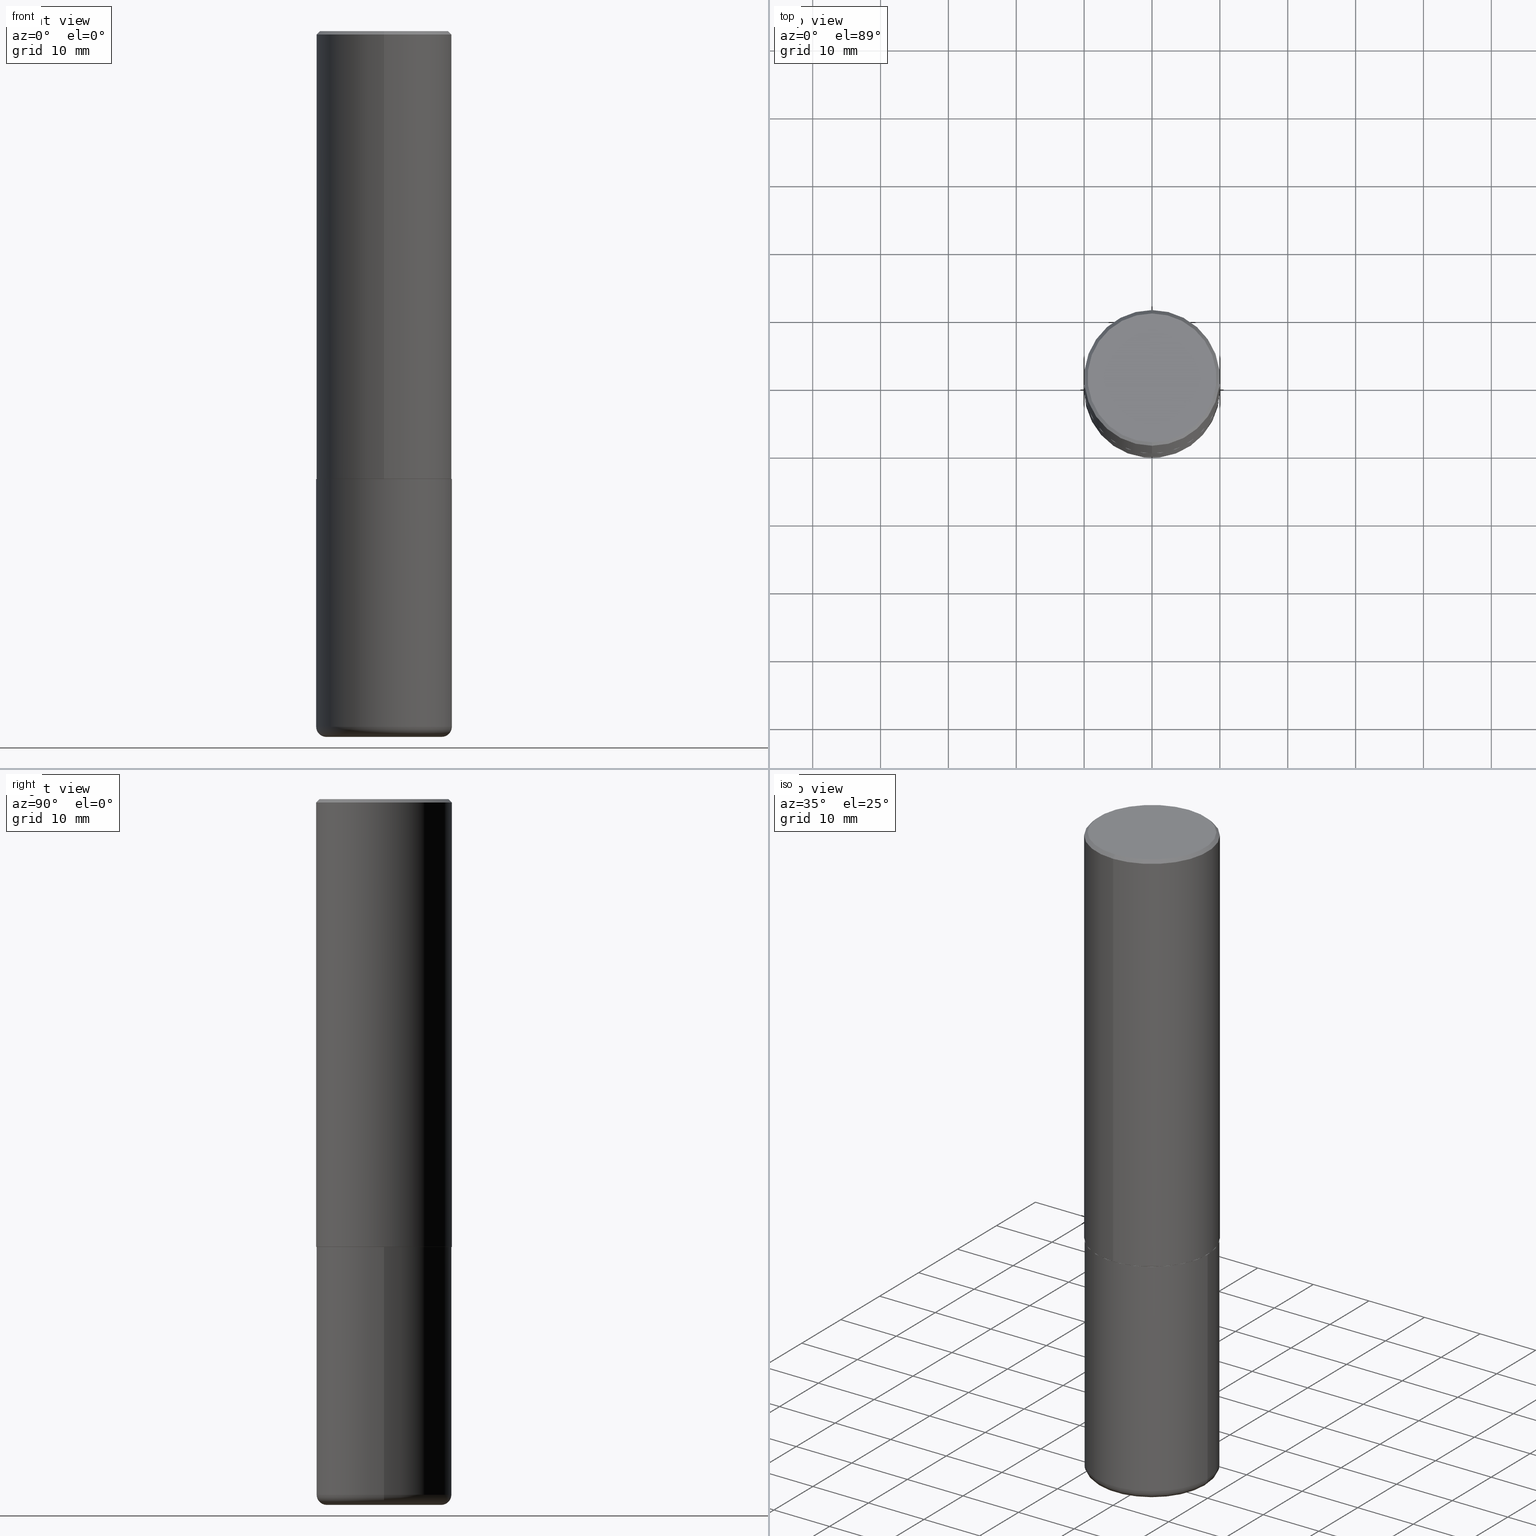
[diagram: canonical four-view strip — front | top / right | iso, engineering-drawing reading convention]
A machine part, canonical four-view strip (front | top / right | iso — engineering-drawing reading convention). The complete STEP part file that produces these views, byte-faithful:
ISO-10303-21;
HEADER;
FILE_DESCRIPTION (( 'STEP AP203' ),
    '1' );
FILE_NAME ('45125.STEP',
    '2024-03-04T14:59:28',
    ( '' ),
    ( '' ),
    'SwSTEP 2.0',
    'SolidWorks 2023',
    '' );
FILE_SCHEMA (( 'CONFIG_CONTROL_DESIGN' ));
ENDSEC;

DATA;
#1 = LINE ( 'NONE', #89, #179 ) ;
#2 = SHAPE_DEFINITION_REPRESENTATION ( #402, #136 ) ;
#3 = VERTEX_POINT ( 'NONE', #144 ) ;
#4 = APPROVAL_ROLE ( '' ) ;
#5 = EDGE_LOOP ( 'NONE', ( #169, #44 ) ) ;
#6 = EDGE_CURVE ( 'NONE', #68, #189, #208, .T. ) ;
#7 = EDGE_LOOP ( 'NONE', ( #38, #43, #305, #175 ) ) ;
#8 = CIRCLE ( 'NONE', #206, 0.05909999999999992343 ) ;
#9 = CC_DESIGN_PERSON_AND_ORGANIZATION_ASSIGNMENT ( #197, #324, ( #209 ) ) ;
#10 = CC_DESIGN_SECURITY_CLASSIFICATION ( #69, ( #209 ) ) ;
#11 = ORIENTED_EDGE ( 'NONE', *, *, #137, .T. ) ;
#12 = ORIENTED_EDGE ( 'NONE', *, *, #380, .F. ) ;
#13 = DIRECTION ( 'NONE',  ( 2.438088387897960049E-29, -3.491481338843145188E-15, -1.000000000000000000 ) ) ;
#14 = CARTESIAN_POINT ( 'NONE',  ( 2.790301323329976493E-15, 0.3926999999999909452, -2.598400000000001597 ) ) ;
#15 = ORIENTED_EDGE ( 'NONE', *, *, #6, .T. ) ;
#16 = CIRCLE ( 'NONE', #196, 0.3937000000000002720 ) ;
#17 = TOROIDAL_SURFACE ( 'NONE', #377, 0.3346000000000000085, 0.05909999999999992343 ) ;
#18 = ADVANCED_FACE ( 'NONE', ( #407 ), #150, .T. ) ;
#19 = DIRECTION ( 'NONE',  ( -6.982962677686265133E-15, -1.000000000000000000, 4.173946514383900962E-15 ) ) ;
#20 = VERTEX_POINT ( 'NONE', #337 ) ;
#21 = CYLINDRICAL_SURFACE ( 'NONE', #243, 0.3937000000000001054 ) ;
#22 = CC_DESIGN_PERSON_AND_ORGANIZATION_ASSIGNMENT ( #66, #330, ( #139 ) ) ;
#23 = EDGE_CURVE ( 'NONE', #129, #362, #371, .T. ) ;
#24 = DIRECTION ( 'NONE',  ( -6.982962677686265133E-15, -1.000000000000000000, 4.173946514383900962E-15 ) ) ;
#25 = CARTESIAN_POINT ( 'NONE',  ( 0.000000000000000000, 0.000000000000000000, 0.000000000000000000 ) ) ;
#26 = CARTESIAN_POINT ( 'NONE',  ( -0.3936999999999999389, -1.129211704408011394E-14, -4.035400000000000098 ) ) ;
#27 = APPROVAL_PERSON_ORGANIZATION ( #388, #360, #130 ) ;
#28 = CARTESIAN_POINT ( 'NONE',  ( 2.797406750687514786E-15, 0.3937000000000001054, -1.375009401077903823E-15 ) ) ;
#29 = ADVANCED_FACE ( 'NONE', ( #80 ), #39, .T. ) ;
#30 = PERSON_AND_ORGANIZATION_ROLE ( 'design_supplier' ) ;
#31 = CARTESIAN_POINT ( 'NONE',  ( -0.3346000000000000085, -1.171204780091433423E-14, -4.035400000000000098 ) ) ;
#32 = VERTEX_POINT ( 'NONE', #341 ) ;
#33 = DATE_TIME_ROLE ( 'creation_date' ) ;
#34 = LINE ( 'NONE', #381, #255 ) ;
#35 = AXIS2_PLACEMENT_3D ( 'NONE', #92, #224, #61 ) ;
#36 = LENGTH_MEASURE_WITH_UNIT ( LENGTH_MEASURE( 0.02539999999999999897 ), #103 );
#37 = EDGE_CURVE ( 'NONE', #362, #129, #205, .T. ) ;
#38 = ORIENTED_EDGE ( 'NONE', *, *, #176, .T. ) ;
#39 = CONICAL_SURFACE ( 'NONE', #363, 0.3936999999999999389, 0.7853981633974456145 ) ;
#40 = CIRCLE ( 'NONE', #225, 0.05909999999999992343 ) ;
#41 = AXIS2_PLACEMENT_3D ( 'NONE', #215, #335, #187 ) ;
#42 = VERTEX_POINT ( 'NONE', #274 ) ;
#43 = ORIENTED_EDGE ( 'NONE', *, *, #99, .T. ) ;
#44 = ORIENTED_EDGE ( 'NONE', *, *, #165, .F. ) ;
#45 = DIRECTION ( 'NONE',  ( -2.444735926825112369E-29, 3.492530863799602802E-15, 1.000000000000000000 ) ) ;
#46 = EDGE_LOOP ( 'NONE', ( #207, #416, #397, #361 ) ) ;
#47 = FACE_OUTER_BOUND ( 'NONE', #180, .T. ) ;
#48 = EDGE_LOOP ( 'NONE', ( #250, #339, #11, #141 ) ) ;
#49 = CARTESIAN_POINT ( 'NONE',  ( 9.868444820479501934E-29, -1.408952379476762952E-14, -4.035400000000000098 ) ) ;
#50 = ORIENTED_EDGE ( 'NONE', *, *, #23, .F. ) ;
#51 = LOCAL_TIME ( 9, 59, 28.00000000000000000, #366 ) ;
#52 = EDGE_CURVE ( 'NONE', #359, #178, #16, .T. ) ;
#53 = FACE_OUTER_BOUND ( 'NONE', #7, .T. ) ;
#54 = ORIENTED_EDGE ( 'NONE', *, *, #176, .F. ) ;
#55 = CARTESIAN_POINT ( 'NONE',  ( 9.868444820479501934E-29, -1.408952379476762952E-14, -4.035400000000000098 ) ) ;
#56 = CARTESIAN_POINT ( 'NONE',  ( 1.001297202692504215E-28, -1.429587034189326149E-14, -4.094500000000000028 ) ) ;
#57 = APPLICATION_PROTOCOL_DEFINITION ( 'international standard', 'config_control_design', 1994, #107 ) ;
#58 = CYLINDRICAL_SURFACE ( 'NONE', #314, 0.3936999999999999389 ) ;
#59 =( CONVERSION_BASED_UNIT ( 'INCH', #36 ) LENGTH_UNIT ( ) NAMED_UNIT ( #249 ) );
#60 = CLOSED_SHELL ( 'NONE', ( #177, #354, #73, #102, #277, #266 ) ) ;
#61 = DIRECTION ( 'NONE',  ( -6.982962677686265133E-15, -1.000000000000000000, 4.173946514383900962E-15 ) ) ;
#62 = APPROVAL_DATE_TIME ( #411, #112 ) ;
#63 = FACE_OUTER_BOUND ( 'NONE', #106, .T. ) ;
#64 = COORDINATED_UNIVERSAL_TIME_OFFSET ( 5, 0, .BEHIND. ) ;
#65 = CIRCLE ( 'NONE', #263, 0.3926999999999999935 ) ;
#66 = PERSON_AND_ORGANIZATION ( #93, #342 ) ;
#67 = CIRCLE ( 'NONE', #134, 0.3926999999999999935 ) ;
#68 = VERTEX_POINT ( 'NONE', #369 ) ;
#69 = SECURITY_CLASSIFICATION ( '', '', #231 ) ;
#70 = AXIS2_PLACEMENT_3D ( 'NONE', #81, #214, #340 ) ;
#71 = AXIS2_PLACEMENT_3D ( 'NONE', #148, #13, #279 ) ;
#72 = DIRECTION ( 'NONE',  ( -6.982962677686265922E-15, -1.000000000000000000, 4.163344669033672479E-15 ) ) ;
#73 = ADVANCED_FACE ( 'NONE', ( #399 ), #114, .F. ) ;
#74 = DIRECTION ( 'NONE',  ( -1.000000000000000000, 6.982962677686265922E-15, -4.876176775795935793E-29 ) ) ;
#75 = CC_DESIGN_PERSON_AND_ORGANIZATION_ASSIGNMENT ( #96, #30, ( #209 ) ) ;
#76 = CC_DESIGN_APPROVAL ( #360, ( #209 ) ) ;
#77 = DIRECTION ( 'NONE',  ( -4.851104656540950075E-15, -0.7071067811865479058, -0.7071067811865469066 ) ) ;
#78 = AXIS2_PLACEMENT_3D ( 'NONE', #56, #157, #164 ) ;
#79 = CARTESIAN_POINT ( 'NONE',  ( -0.3937000000000000499, -8.783487702121316283E-15, -2.598400000000000265 ) ) ;
#80 = FACE_OUTER_BOUND ( 'NONE', #372, .T. ) ;
#81 = CARTESIAN_POINT ( 'NONE',  ( -5.435989073177143407E-45, 7.765812006536082056E-31, 2.223548569614494101E-16 ) ) ;
#82 = ORIENTED_EDGE ( 'NONE', *, *, #334, .F. ) ;
#83 = ADVANCED_FACE ( 'NONE', ( #412 ), #229, .F. ) ;
#84 = DIRECTION ( 'NONE',  ( 1.000000000000000000, -6.982962677686269866E-15, 0.000000000000000000 ) ) ;
#85 = DIRECTION ( 'NONE',  ( -2.445468806185136597E-29, 3.491481338843145583E-15, 1.000000000000000000 ) ) ;
#86 = AXIS2_PLACEMENT_3D ( 'NONE', #181, #147, #278 ) ;
#87 = DIRECTION ( 'NONE',  ( -6.982962677686265922E-15, -1.000000000000000000, 3.492530863799602802E-15 ) ) ;
#88 = CARTESIAN_POINT ( 'NONE',  ( 1.001297202692504215E-28, -1.429587034189326149E-14, -4.094500000000000028 ) ) ;
#89 = CARTESIAN_POINT ( 'NONE',  ( 2.749192406205082822E-15, 0.3936999999999998834, -0.02000000000000146105 ) ) ;
#90 = DIRECTION ( 'NONE',  ( -2.444735926825112369E-29, 3.492530863799602802E-15, 1.000000000000000000 ) ) ;
#91 = CC_DESIGN_DATE_AND_TIME_ASSIGNMENT ( #127, #33, ( #191 ) ) ;
#92 = CARTESIAN_POINT ( 'NONE',  ( 6.352401832262370867E-29, -9.074992196496887993E-15, -2.598399999999999821 ) ) ;
#93 = PERSON ( 'UNSPECIFIED', 'UNSPECIFIED', 'UNSPECIFIED', ('UNSPECIFIED'), ('UNSPECIFIED'), ('UNSPECIFIED') ) ;
#94 = AXIS2_PLACEMENT_3D ( 'NONE', #162, #90, #262 ) ;
#95 = ORIENTED_EDGE ( 'NONE', *, *, #296, .T. ) ;
#96 = PERSON_AND_ORGANIZATION ( #93, #342 ) ;
#97 = VECTOR ( 'NONE', #346, 39.37007874015748143 ) ;
#98 = DIRECTION ( 'NONE',  ( 7.105427357601001859E-15, 1.000000000000000000, -3.491481338843145583E-15 ) ) ;
#99 = EDGE_CURVE ( 'NONE', #359, #310, #319, .T. ) ;
#100 = CALENDAR_DATE ( 2024, 4, 3 ) ;
#101 = EDGE_CURVE ( 'NONE', #42, #245, #358, .T. ) ;
#102 = ADVANCED_FACE ( 'NONE', ( #123 ), #58, .T. ) ;
#103 =( LENGTH_UNIT ( ) NAMED_UNIT ( * ) SI_UNIT ( $, .METRE. ) );
#104 =( GEOMETRIC_REPRESENTATION_CONTEXT ( 3 ) GLOBAL_UNCERTAINTY_ASSIGNED_CONTEXT ( ( #323 ) ) GLOBAL_UNIT_ASSIGNED_CONTEXT ( ( #59, #135, #347 ) ) REPRESENTATION_CONTEXT ( 'NONE', 'WORKASPACE' ) );
#105 = CALENDAR_DATE ( 2024, 4, 3 ) ;
#106 = EDGE_LOOP ( 'NONE', ( #133, #395, #54, #260 ) ) ;
#107 = APPLICATION_CONTEXT ( 'configuration controlled 3d designs of mechanical parts and assemblies' ) ;
#108 = EDGE_LOOP ( 'NONE', ( #152, #227 ) ) ;
#109 = CC_DESIGN_APPROVAL ( #239, ( #69 ) ) ;
#110 = VERTEX_POINT ( 'NONE', #351 ) ;
#111 = ORIENTED_EDGE ( 'NONE', *, *, #251, .F. ) ;
#112 = APPROVAL ( #292, 'UNSPECIFIED' ) ;
#113 = CARTESIAN_POINT ( 'NONE',  ( 2.749192406205082822E-15, 0.3936999999999998834, -0.02000000000000146105 ) ) ;
#114 = PLANE ( 'NONE',  #71 ) ;
#115 = DIRECTION ( 'NONE',  ( 2.438088387897960049E-29, -3.491481338843145188E-15, -1.000000000000000000 ) ) ;
#116 = CC_DESIGN_APPROVAL ( #112, ( #191 ) ) ;
#117 = ORIENTED_EDGE ( 'NONE', *, *, #37, .F. ) ;
#118 = CARTESIAN_POINT ( 'NONE',  ( 0.3936999999999999389, -2.749192406205082822E-15, 1.919750796630859611E-29 ) ) ;
#119 = ORIENTED_EDGE ( 'NONE', *, *, #165, .T. ) ;
#120 = CYLINDRICAL_SURFACE ( 'NONE', #151, 0.3937000000000001054 ) ;
#121 = CARTESIAN_POINT ( 'NONE',  ( 4.889471853650246808E-31, -6.985061727599234890E-17, -0.02000000000000008715 ) ) ;
#122 = DIRECTION ( 'NONE',  ( -2.444735926825112369E-29, 3.492530863799602802E-15, 1.000000000000000000 ) ) ;
#123 = FACE_OUTER_BOUND ( 'NONE', #247, .T. ) ;
#124 = CIRCLE ( 'NONE', #261, 0.3936999999999999389 ) ;
#125 = VECTOR ( 'NONE', #126, 39.37007874015748143 ) ;
#126 = DIRECTION ( 'NONE',  ( -4.937700262167077130E-15, -0.7071067811869072850, 0.7071067811861877495 ) ) ;
#127 = DATE_AND_TIME ( #222, #389 ) ;
#128 = CARTESIAN_POINT ( 'NONE',  ( -5.435989073177143407E-45, 7.765812006536082056E-31, 2.223548569614494101E-16 ) ) ;
#129 = VERTEX_POINT ( 'NONE', #409 ) ;
#130 = APPROVAL_ROLE ( '' ) ;
#131 = DIRECTION ( 'NONE',  ( -2.444735926825112369E-29, 3.492530863799602802E-15, 1.000000000000000000 ) ) ;
#132 = VECTOR ( 'NONE', #406, 39.37007874015748143 ) ;
#133 = ORIENTED_EDGE ( 'NONE', *, *, #156, .T. ) ;
#134 = AXIS2_PLACEMENT_3D ( 'NONE', #317, #322, #24 ) ;
#135 =( NAMED_UNIT ( * ) PLANE_ANGLE_UNIT ( ) SI_UNIT ( $, .RADIAN. ) );
#136 = ADVANCED_BREP_SHAPE_REPRESENTATION ( '45125', ( #308, #174, #299 ), #104 ) ;
#137 = EDGE_CURVE ( 'NONE', #178, #189, #34, .T. ) ;
#138 = CIRCLE ( 'NONE', #86, 0.3936999999999999389 ) ;
#139 = PRODUCT ( '45125', '45125', '', ( #356 ) ) ;
#140 = VECTOR ( 'NONE', #77, 39.37007874015748854 ) ;
#141 = ORIENTED_EDGE ( 'NONE', *, *, #160, .F. ) ;
#142 = EDGE_LOOP ( 'NONE', ( #270, #300, #50, #82 ) ) ;
#143 = AXIS2_PLACEMENT_3D ( 'NONE', #128, #259, #387 ) ;
#144 = CARTESIAN_POINT ( 'NONE',  ( 0.3936999999999999389, -1.683871620097271431E-14, -4.035400000000000098 ) ) ;
#145 = EDGE_CURVE ( 'NONE', #110, #178, #293, .T. ) ;
#146 = DIRECTION ( 'NONE',  ( 1.000000000000000000, -6.982962677686267499E-15, 0.000000000000000000 ) ) ;
#147 = DIRECTION ( 'NONE',  ( -2.444735926825112369E-29, 3.492530863799602802E-15, 1.000000000000000000 ) ) ;
#148 = CARTESIAN_POINT ( 'NONE',  ( 6.354306145991459756E-29, -9.072265110850031044E-15, -2.598400000000000265 ) ) ;
#149 = CARTESIAN_POINT ( 'NONE',  ( 0.3346000000000000085, -1.642602310672145667E-14, -4.035400000000000098 ) ) ;
#150 = CONICAL_SURFACE ( 'NONE', #41, 0.3936999999999999389, 0.7853981633974456145 ) ;
#151 = AXIS2_PLACEMENT_3D ( 'NONE', #408, #122, #404 ) ;
#152 = ORIENTED_EDGE ( 'NONE', *, *, #23, .T. ) ;
#153 = DIRECTION ( 'NONE',  ( -2.445468806185136597E-29, 3.491481338843145583E-15, 1.000000000000000000 ) ) ;
#154 = EDGE_LOOP ( 'NONE', ( #264, #12 ) ) ;
#155 = LINE ( 'NONE', #375, #280 ) ;
#156 = EDGE_CURVE ( 'NONE', #110, #32, #67, .T. ) ;
#157 = DIRECTION ( 'NONE',  ( -2.445468806185136597E-29, 3.491481338843145583E-15, 1.000000000000000000 ) ) ;
#158 = DIRECTION ( 'NONE',  ( 1.000000000000000000, 0.000000000000000000, 0.000000000000000000 ) ) ;
#159 = CARTESIAN_POINT ( 'NONE',  ( 0.000000000000000000, 0.000000000000000000, 0.000000000000000000 ) ) ;
#160 = EDGE_CURVE ( 'NONE', #310, #189, #303, .T. ) ;
#161 = LOCAL_TIME ( 9, 59, 28.00000000000000000, #194 ) ;
#162 = CARTESIAN_POINT ( 'NONE',  ( 6.349957096335548913E-29, -9.071499665633090901E-15, -2.597400000000000375 ) ) ;
#163 = PERSON_AND_ORGANIZATION ( #93, #342 ) ;
#164 = DIRECTION ( 'NONE',  ( 1.000000000000000000, -6.982962677686269866E-15, 0.000000000000000000 ) ) ;
#165 = EDGE_CURVE ( 'NONE', #245, #42, #233, .T. ) ;
#166 = AXIS2_PLACEMENT_3D ( 'NONE', #210, #45, #316 ) ;
#167 = CC_DESIGN_DATE_AND_TIME_ASSIGNMENT ( #418, #364, ( #69 ) ) ;
#168 = DATE_AND_TIME ( #105, #51 ) ;
#169 = ORIENTED_EDGE ( 'NONE', *, *, #101, .F. ) ;
#170 = CC_DESIGN_PERSON_AND_ORGANIZATION_ASSIGNMENT ( #320, #256, ( #191 ) ) ;
#171 = CONICAL_SURFACE ( 'NONE', #166, 0.3926999999999999935, 0.7853981633979605359 ) ;
#172 = PERSON_AND_ORGANIZATION ( #93, #342 ) ;
#173 = VERTEX_POINT ( 'NONE', #26 ) ;
#174 = MANIFOLD_SOLID_BREP ( 'Body-Move/Copy2[2]', #226 ) ;
#175 = ORIENTED_EDGE ( 'NONE', *, *, #137, .F. ) ;
#176 = EDGE_CURVE ( 'NONE', #178, #359, #273, .T. ) ;
#177 = ADVANCED_FACE ( 'NONE', ( #221 ), #257, .T. ) ;
#178 = VERTEX_POINT ( 'NONE', #414 ) ;
#179 = VECTOR ( 'NONE', #384, 39.37007874015748854 ) ;
#180 = EDGE_LOOP ( 'NONE', ( #238, #405, #294, #301 ) ) ;
#181 = CARTESIAN_POINT ( 'NONE',  ( 4.889471853650246808E-31, -6.985061727599234890E-17, -0.02000000000000008715 ) ) ;
#182 = DIRECTION ( 'NONE',  ( 6.982962677686265922E-15, 1.000000000000000000, -3.491137977679280212E-15 ) ) ;
#183 = CARTESIAN_POINT ( 'NONE',  ( 2.797406750687547919E-15, 0.3936999999999912792, -2.597400000000002152 ) ) ;
#184 = ORIENTED_EDGE ( 'NONE', *, *, #410, .T. ) ;
#185 = DIRECTION ( 'NONE',  ( -2.445468806185136597E-29, 3.491481338843145583E-15, 1.000000000000000000 ) ) ;
#186 = AXIS2_PLACEMENT_3D ( 'NONE', #192, #131, #287 ) ;
#187 = DIRECTION ( 'NONE',  ( 6.982962677686265922E-15, 1.000000000000000000, -3.491137977679280212E-15 ) ) ;
#188 = DIRECTION ( 'NONE',  ( 1.000000000000000000, -6.982962677686269077E-15, 4.883557194083114022E-29 ) ) ;
#189 = VERTEX_POINT ( 'NONE', #348 ) ;
#190 = PLANE ( 'NONE',  #350 ) ;
#191 = PRODUCT_DEFINITION ( 'UNKNOWN', '', #209, #193 ) ;
#192 = CARTESIAN_POINT ( 'NONE',  ( 4.889471853650246808E-31, -6.985061727599234890E-17, -0.02000000000000008715 ) ) ;
#193 = DESIGN_CONTEXT ( 'detailed design', #283, 'design' ) ;
#194 = COORDINATED_UNIVERSAL_TIME_OFFSET ( 5, 0, .BEHIND. ) ;
#195 = DIRECTION ( 'NONE',  ( 2.444735926825112088E-29, -3.492530863799602802E-15, -1.000000000000000000 ) ) ;
#196 = AXIS2_PLACEMENT_3D ( 'NONE', #307, #240, #72 ) ;
#197 = PERSON_AND_ORGANIZATION ( #93, #342 ) ;
#198 = DIRECTION ( 'NONE',  ( 1.000000000000000000, -6.982962677686266711E-15, 4.876176775795935793E-29 ) ) ;
#199 = DIRECTION ( 'NONE',  ( 6.982962677686265922E-15, 1.000000000000000000, -3.492530863799602802E-15 ) ) ;
#200 = APPROVAL_ROLE ( '' ) ;
#201 = AXIS2_PLACEMENT_3D ( 'NONE', #353, #195, #199 ) ;
#202 = DIRECTION ( 'NONE',  ( 1.000000000000000000, -6.982962677686269866E-15, 0.000000000000000000 ) ) ;
#203 = EDGE_LOOP ( 'NONE', ( #282, #390 ) ) ;
#204 = EDGE_LOOP ( 'NONE', ( #315, #15, #392, #218 ) ) ;
#205 = CIRCLE ( 'NONE', #269, 0.3937000000000000499 ) ;
#206 = AXIS2_PLACEMENT_3D ( 'NONE', #149, #253, #220 ) ;
#207 = ORIENTED_EDGE ( 'NONE', *, *, #365, .F. ) ;
#208 = LINE ( 'NONE', #376, #140 ) ;
#209 = PRODUCT_DEFINITION_FORMATION_WITH_SPECIFIED_SOURCE ( 'ANY', '', #139, .NOT_KNOWN. ) ;
#210 = CARTESIAN_POINT ( 'NONE',  ( 6.352401832262370867E-29, -9.074992196496887993E-15, -2.598399999999999821 ) ) ;
#211 = ORIENTED_EDGE ( 'NONE', *, *, #396, .T. ) ;
#212 = DIRECTION ( 'NONE',  ( -2.445468806185136597E-29, 3.491481338843145583E-15, 1.000000000000000000 ) ) ;
#213 = DIRECTION ( 'NONE',  ( 2.444735926825112369E-29, -3.492530863799602802E-15, -1.000000000000000000 ) ) ;
#214 = DIRECTION ( 'NONE',  ( -2.444735926825112369E-29, 3.492530863799602802E-15, 1.000000000000000000 ) ) ;
#215 = CARTESIAN_POINT ( 'NONE',  ( 4.889471853650246808E-31, -6.985061727599234890E-17, -0.02000000000000008715 ) ) ;
#216 = DIRECTION ( 'NONE',  ( -2.444735926825112088E-29, 3.492530863799602802E-15, 1.000000000000000000 ) ) ;
#217 = AXIS2_PLACEMENT_3D ( 'NONE', #88, #415, #383 ) ;
#218 = ORIENTED_EDGE ( 'NONE', *, *, #410, .F. ) ;
#219 = AXIS2_PLACEMENT_3D ( 'NONE', #367, #242, #146 ) ;
#220 = DIRECTION ( 'NONE',  ( 1.000000000000000000, -6.982962677686271444E-15, 0.000000000000000000 ) ) ;
#221 = FACE_OUTER_BOUND ( 'NONE', #142, .T. ) ;
#222 = CALENDAR_DATE ( 2024, 4, 3 ) ;
#223 = DIRECTION ( 'NONE',  ( 1.000000000000000000, -6.982962677686266711E-15, 4.876176775795935793E-29 ) ) ;
#224 = DIRECTION ( 'NONE',  ( -2.444735926825112369E-29, 3.492530863799602802E-15, 1.000000000000000000 ) ) ;
#225 = AXIS2_PLACEMENT_3D ( 'NONE', #31, #98, #306 ) ;
#226 = CLOSED_SHELL ( 'NONE', ( #236, #271, #18, #29, #298, #311, #252, #83 ) ) ;
#227 = ORIENTED_EDGE ( 'NONE', *, *, #37, .T. ) ;
#228 = COORDINATED_UNIVERSAL_TIME_OFFSET ( 5, 0, .BEHIND. ) ;
#229 = PLANE ( 'NONE',  #201 ) ;
#230 = PRODUCT_RELATED_PRODUCT_CATEGORY ( 'detail', '', ( #139 ) ) ;
#231 = SECURITY_CLASSIFICATION_LEVEL ( 'unclassified' ) ;
#232 = EDGE_CURVE ( 'NONE', #20, #68, #403, .T. ) ;
#233 = CIRCLE ( 'NONE', #217, 0.3346000000000000085 ) ;
#234 = ORIENTED_EDGE ( 'NONE', *, *, #160, .T. ) ;
#235 = EDGE_LOOP ( 'NONE', ( #111, #119, #95, #285 ) ) ;
#236 = ADVANCED_FACE ( 'NONE', ( #63 ), #297, .T. ) ;
#237 = LOCAL_TIME ( 9, 59, 28.00000000000000000, #228 ) ;
#238 = ORIENTED_EDGE ( 'NONE', *, *, #101, .T. ) ;
#239 = APPROVAL ( #391, 'UNSPECIFIED' ) ;
#240 = DIRECTION ( 'NONE',  ( -2.444735926825112369E-29, 3.492530863799602802E-15, 1.000000000000000000 ) ) ;
#241 = FACE_OUTER_BOUND ( 'NONE', #46, .T. ) ;
#242 = DIRECTION ( 'NONE',  ( -2.445468806185136597E-29, 3.491481338843145583E-15, 1.000000000000000000 ) ) ;
#243 = AXIS2_PLACEMENT_3D ( 'NONE', #25, #345, #275 ) ;
#244 = DIRECTION ( 'NONE',  ( -2.445468806185136877E-29, 3.491481338843145188E-15, 1.000000000000000000 ) ) ;
#245 = VERTEX_POINT ( 'NONE', #325 ) ;
#246 = DIRECTION ( 'NONE',  ( -2.444735926825112369E-29, 3.492530863799602802E-15, 1.000000000000000000 ) ) ;
#247 = EDGE_LOOP ( 'NONE', ( #333, #211, #374, #117 ) ) ;
#248 = FACE_OUTER_BOUND ( 'NONE', #235, .T. ) ;
#249 = DIMENSIONAL_EXPONENTS ( 1.000000000000000000, 0.000000000000000000, 0.000000000000000000, 0.000000000000000000, 0.000000000000000000, 0.000000000000000000, 0.000000000000000000 ) ;
#250 = ORIENTED_EDGE ( 'NONE', *, *, #99, .F. ) ;
#251 = EDGE_CURVE ( 'NONE', #245, #173, #40, .T. ) ;
#252 = ADVANCED_FACE ( 'NONE', ( #286 ), #190, .F. ) ;
#253 = DIRECTION ( 'NONE',  ( -6.982962677686266711E-15, -1.000000000000000000, 3.491481338843145583E-15 ) ) ;
#254 = DIRECTION ( 'NONE',  ( -2.445468806185136597E-29, 3.491481338843145583E-15, 1.000000000000000000 ) ) ;
#255 = VECTOR ( 'NONE', #290, 39.37007874015748143 ) ;
#256 = PERSON_AND_ORGANIZATION_ROLE ( 'creator' ) ;
#257 = CYLINDRICAL_SURFACE ( 'NONE', #289, 0.3936999999999999389 ) ;
#258 = APPROVAL_STATUS ( 'not_yet_approved' ) ;
#259 = DIRECTION ( 'NONE',  ( -2.444735926825112369E-29, 3.492530863799602802E-15, 1.000000000000000000 ) ) ;
#260 = ORIENTED_EDGE ( 'NONE', *, *, #145, .F. ) ;
#261 = AXIS2_PLACEMENT_3D ( 'NONE', #49, #153, #202 ) ;
#262 = DIRECTION ( 'NONE',  ( -6.982962677686265922E-15, -1.000000000000000000, 4.163344669033672479E-15 ) ) ;
#263 = AXIS2_PLACEMENT_3D ( 'NONE', #281, #246, #19 ) ;
#264 = ORIENTED_EDGE ( 'NONE', *, *, #156, .F. ) ;
#265 = CARTESIAN_POINT ( 'NONE',  ( 0.000000000000000000, 0.000000000000000000, 0.000000000000000000 ) ) ;
#266 = ADVANCED_FACE ( 'NONE', ( #318 ), #284, .T. ) ;
#267 = APPLICATION_PROTOCOL_DEFINITION ( 'international standard', 'config_control_design', 1994, #283 ) ;
#268 = EDGE_CURVE ( 'NONE', #173, #362, #155, .T. ) ;
#269 = AXIS2_PLACEMENT_3D ( 'NONE', #276, #85, #344 ) ;
#270 = ORIENTED_EDGE ( 'NONE', *, *, #304, .T. ) ;
#271 = ADVANCED_FACE ( 'NONE', ( #53 ), #120, .T. ) ;
#272 = CC_DESIGN_PERSON_AND_ORGANIZATION_ASSIGNMENT ( #163, #327, ( #69 ) ) ;
#273 = CIRCLE ( 'NONE', #94, 0.3937000000000002720 ) ;
#274 = CARTESIAN_POINT ( 'NONE',  ( 0.3346000000000000085, -1.663236965384708707E-14, -4.094500000000000028 ) ) ;
#275 = DIRECTION ( 'NONE',  ( -6.982962677686265133E-15, -1.000000000000000000, 3.492530863799602407E-15 ) ) ;
#276 = CARTESIAN_POINT ( 'NONE',  ( 6.354306145991459756E-29, -9.072265110850031044E-15, -2.598400000000000265 ) ) ;
#277 = ADVANCED_FACE ( 'NONE', ( #248 ), #17, .T. ) ;
#278 = DIRECTION ( 'NONE',  ( -6.982962677686265922E-15, -1.000000000000000000, 3.491137977679280212E-15 ) ) ;
#279 = DIRECTION ( 'NONE',  ( -1.000000000000000000, 6.982962677686265922E-15, -4.876176775795935793E-29 ) ) ;
#280 = VECTOR ( 'NONE', #313, 39.37007874015748143 ) ;
#281 = CARTESIAN_POINT ( 'NONE',  ( 6.352401832262370867E-29, -9.074992196496887993E-15, -2.598399999999999821 ) ) ;
#282 = ORIENTED_EDGE ( 'NONE', *, *, #232, .T. ) ;
#283 = APPLICATION_CONTEXT ( 'configuration controlled 3d designs of mechanical parts and assemblies' ) ;
#284 = PLANE ( 'NONE',  #394 ) ;
#285 = ORIENTED_EDGE ( 'NONE', *, *, #396, .F. ) ;
#286 = FACE_OUTER_BOUND ( 'NONE', #154, .T. ) ;
#287 = DIRECTION ( 'NONE',  ( -6.982962677686265922E-15, -1.000000000000000000, 3.491137977679280212E-15 ) ) ;
#288 = PERSON_AND_ORGANIZATION ( #93, #342 ) ;
#289 = AXIS2_PLACEMENT_3D ( 'NONE', #159, #291, #223 ) ;
#290 = DIRECTION ( 'NONE',  ( -2.444735926825112649E-29, 3.492530863799602802E-15, 1.000000000000000000 ) ) ;
#291 = DIRECTION ( 'NONE',  ( -2.445468806185136597E-29, 3.491481338843145583E-15, 1.000000000000000000 ) ) ;
#292 = APPROVAL_STATUS ( 'not_yet_approved' ) ;
#293 = LINE ( 'NONE', #379, #125 ) ;
#294 = ORIENTED_EDGE ( 'NONE', *, *, #304, .F. ) ;
#295 = APPROVAL_DATE_TIME ( #349, #360 ) ;
#296 = EDGE_CURVE ( 'NONE', #42, #3, #8, .T. ) ;
#297 = CONICAL_SURFACE ( 'NONE', #35, 0.3926999999999999935, 0.7853981633979605359 ) ;
#298 = ADVANCED_FACE ( 'NONE', ( #378 ), #21, .T. ) ;
#299 = AXIS2_PLACEMENT_3D ( 'NONE', #265, #355, #158 ) ;
#300 = ORIENTED_EDGE ( 'NONE', *, *, #268, .T. ) ;
#301 = ORIENTED_EDGE ( 'NONE', *, *, #296, .F. ) ;
#302 = CIRCLE ( 'NONE', #70, 0.3736999999999997546 ) ;
#303 = CIRCLE ( 'NONE', #186, 0.3936999999999999389 ) ;
#304 = EDGE_CURVE ( 'NONE', #3, #173, #321, .T. ) ;
#305 = ORIENTED_EDGE ( 'NONE', *, *, #328, .F. ) ;
#306 = DIRECTION ( 'NONE',  ( -1.000000000000000000, 7.105427357601001859E-15, 0.000000000000000000 ) ) ;
#307 = CARTESIAN_POINT ( 'NONE',  ( 6.349957096335548913E-29, -9.071499665633090901E-15, -2.597400000000000375 ) ) ;
#308 = MANIFOLD_SOLID_BREP ( 'Body-Move/Copy2[1]', #60 ) ;
#309 = LINE ( 'NONE', #14, #132 ) ;
#310 = VERTEX_POINT ( 'NONE', #113 ) ;
#311 = ADVANCED_FACE ( 'NONE', ( #241 ), #171, .T. ) ;
#312 = APPROVAL_PERSON_ORGANIZATION ( #172, #239, #4 ) ;
#313 = DIRECTION ( 'NONE',  ( -2.445468806185136877E-29, 3.491481338843145188E-15, 1.000000000000000000 ) ) ;
#314 = AXIS2_PLACEMENT_3D ( 'NONE', #326, #254, #198 ) ;
#315 = ORIENTED_EDGE ( 'NONE', *, *, #386, .F. ) ;
#316 = DIRECTION ( 'NONE',  ( -6.982962677686265133E-15, -1.000000000000000000, 4.173946514383900962E-15 ) ) ;
#317 = CARTESIAN_POINT ( 'NONE',  ( 6.352401832262370867E-29, -9.074992196496887993E-15, -2.598399999999999821 ) ) ;
#318 = FACE_OUTER_BOUND ( 'NONE', #5, .T. ) ;
#319 = LINE ( 'NONE', #28, #97 ) ;
#320 = PERSON_AND_ORGANIZATION ( #93, #342 ) ;
#321 = CIRCLE ( 'NONE', #357, 0.3936999999999999389 ) ;
#322 = DIRECTION ( 'NONE',  ( -2.444735926825112369E-29, 3.492530863799602802E-15, 1.000000000000000000 ) ) ;
#323 = UNCERTAINTY_MEASURE_WITH_UNIT (LENGTH_MEASURE( 1.000000000000000082E-05 ), #59, 'distance_accuracy_value', 'NONE');
#324 = PERSON_AND_ORGANIZATION_ROLE ( 'creator' ) ;
#325 = CARTESIAN_POINT ( 'NONE',  ( -0.3346000000000000085, -1.160525569606004165E-14, -4.094500000000000028 ) ) ;
#326 = CARTESIAN_POINT ( 'NONE',  ( 0.000000000000000000, 0.000000000000000000, 0.000000000000000000 ) ) ;
#327 = PERSON_AND_ORGANIZATION_ROLE ( 'classification_officer' ) ;
#328 = EDGE_CURVE ( 'NONE', #189, #310, #138, .T. ) ;
#329 = AXIS2_PLACEMENT_3D ( 'NONE', #373, #212, #338 ) ;
#330 = PERSON_AND_ORGANIZATION_ROLE ( 'design_owner' ) ;
#331 = VECTOR ( 'NONE', #244, 39.37007874015748143 ) ;
#332 = ORIENTED_EDGE ( 'NONE', *, *, #232, .F. ) ;
#333 = ORIENTED_EDGE ( 'NONE', *, *, #268, .F. ) ;
#334 = EDGE_CURVE ( 'NONE', #3, #129, #400, .T. ) ;
#335 = DIRECTION ( 'NONE',  ( 2.444735926825112369E-29, -3.492530863799602802E-15, -1.000000000000000000 ) ) ;
#336 = CARTESIAN_POINT ( 'NONE',  ( 6.352401832262371988E-29, -9.074992196496889571E-15, -2.598400000000000265 ) ) ;
#337 = CARTESIAN_POINT ( 'NONE',  ( 2.679362779428219524E-15, 0.3736999999999997546, -1.082803926840461447E-15 ) ) ;
#338 = DIRECTION ( 'NONE',  ( 1.000000000000000000, -6.982962677686269077E-15, 4.883557194083114022E-29 ) ) ;
#339 = ORIENTED_EDGE ( 'NONE', *, *, #52, .T. ) ;
#340 = DIRECTION ( 'NONE',  ( -6.982962677686265922E-15, -1.000000000000000000, 3.492530863799602802E-15 ) ) ;
#341 = CARTESIAN_POINT ( 'NONE',  ( 2.793854037008778575E-15, 0.3926999999999909452, -2.598400000000001597 ) ) ;
#342 = ORGANIZATION ( 'UNSPECIFIED', 'UNSPECIFIED', '' ) ;
#343 = CARTESIAN_POINT ( 'NONE',  ( 9.868444820479501934E-29, -1.408952379476762952E-14, -4.035400000000000098 ) ) ;
#344 = DIRECTION ( 'NONE',  ( 1.000000000000000000, -6.982962677686267499E-15, 0.000000000000000000 ) ) ;
#345 = DIRECTION ( 'NONE',  ( -2.444735926825112369E-29, 3.492530863799602802E-15, 1.000000000000000000 ) ) ;
#346 = DIRECTION ( 'NONE',  ( -2.444735926825112649E-29, 3.492530863799602802E-15, 1.000000000000000000 ) ) ;
#347 =( NAMED_UNIT ( * ) SI_UNIT ( $, .STERADIAN. ) SOLID_ANGLE_UNIT ( ) );
#348 = CARTESIAN_POINT ( 'NONE',  ( -2.700978061722650858E-15, -0.3937000000000000499, -0.01999999999999870978 ) ) ;
#349 = DATE_AND_TIME ( #382, #370 ) ;
#350 = AXIS2_PLACEMENT_3D ( 'NONE', #336, #216, #87 ) ;
#351 = CARTESIAN_POINT ( 'NONE',  ( -2.742209443527332910E-15, -0.3927000000000090973, -2.598399999999998045 ) ) ;
#352 = CALENDAR_DATE ( 2024, 4, 3 ) ;
#353 = CARTESIAN_POINT ( 'NONE',  ( 2.609533152651355831E-15, 0.3736999999999997546, -1.193981355321185980E-15 ) ) ;
#354 = ADVANCED_FACE ( 'NONE', ( #47 ), #385, .T. ) ;
#355 = DIRECTION ( 'NONE',  ( 0.000000000000000000, 0.000000000000000000, 1.000000000000000000 ) ) ;
#356 = MECHANICAL_CONTEXT ( 'NONE', #107, 'mechanical' ) ;
#357 = AXIS2_PLACEMENT_3D ( 'NONE', #55, #398, #84 ) ;
#358 = CIRCLE ( 'NONE', #78, 0.3346000000000000085 ) ;
#359 = VERTEX_POINT ( 'NONE', #183 ) ;
#360 = APPROVAL ( #258, 'UNSPECIFIED' ) ;
#361 = ORIENTED_EDGE ( 'NONE', *, *, #52, .F. ) ;
#362 = VERTEX_POINT ( 'NONE', #79 ) ;
#363 = AXIS2_PLACEMENT_3D ( 'NONE', #121, #213, #182 ) ;
#364 = DATE_TIME_ROLE ( 'classification_date' ) ;
#365 = EDGE_CURVE ( 'NONE', #32, #359, #309, .T. ) ;
#366 = COORDINATED_UNIVERSAL_TIME_OFFSET ( 5, 0, .BEHIND. ) ;
#367 = CARTESIAN_POINT ( 'NONE',  ( 6.354306145991459756E-29, -9.072265110850031044E-15, -2.598400000000000265 ) ) ;
#368 = CARTESIAN_POINT ( 'NONE',  ( 1.001297202692504215E-28, -1.429587034189326149E-14, -4.094500000000000028 ) ) ;
#369 = CARTESIAN_POINT ( 'NONE',  ( -2.632373081744935132E-15, -0.3736999999999997546, 1.527513640763360169E-15 ) ) ;
#370 = LOCAL_TIME ( 9, 59, 28.00000000000000000, #64 ) ;
#371 = CIRCLE ( 'NONE', #219, 0.3937000000000000499 ) ;
#372 = EDGE_LOOP ( 'NONE', ( #401, #332, #184, #234 ) ) ;
#373 = CARTESIAN_POINT ( 'NONE',  ( 9.868444820479501934E-29, -1.408952379476762952E-14, -4.035400000000000098 ) ) ;
#374 = ORIENTED_EDGE ( 'NONE', *, *, #334, .T. ) ;
#375 = CARTESIAN_POINT ( 'NONE',  ( -0.3936999999999999389, 2.797406750687513998E-15, -1.936584745033356455E-29 ) ) ;
#376 = CARTESIAN_POINT ( 'NONE',  ( -2.700978061722650858E-15, -0.3937000000000000499, -0.01999999999999870978 ) ) ;
#377 = AXIS2_PLACEMENT_3D ( 'NONE', #343, #185, #188 ) ;
#378 = FACE_OUTER_BOUND ( 'NONE', #48, .T. ) ;
#379 = CARTESIAN_POINT ( 'NONE',  ( -2.742209443527332910E-15, -0.3927000000000090973, -2.598399999999998045 ) ) ;
#380 = EDGE_CURVE ( 'NONE', #32, #110, #65, .T. ) ;
#381 = CARTESIAN_POINT ( 'NONE',  ( -2.749192406205083217E-15, -0.3937000000000001054, 1.375009401077903823E-15 ) ) ;
#382 = CALENDAR_DATE ( 2024, 4, 3 ) ;
#383 = DIRECTION ( 'NONE',  ( 1.000000000000000000, -6.982962677686269866E-15, 0.000000000000000000 ) ) ;
#384 = DIRECTION ( 'NONE',  ( 4.937700262164533054E-15, 0.7071067811865430208, -0.7071067811865517916 ) ) ;
#385 = TOROIDAL_SURFACE ( 'NONE', #329, 0.3346000000000000085, 0.05909999999999992343 ) ;
#386 = EDGE_CURVE ( 'NONE', #68, #20, #302, .T. ) ;
#387 = DIRECTION ( 'NONE',  ( -6.982962677686265922E-15, -1.000000000000000000, 3.492530863799602802E-15 ) ) ;
#388 = PERSON_AND_ORGANIZATION ( #93, #342 ) ;
#389 = LOCAL_TIME ( 9, 59, 28.00000000000000000, #413 ) ;
#390 = ORIENTED_EDGE ( 'NONE', *, *, #386, .T. ) ;
#391 = APPROVAL_STATUS ( 'not_yet_approved' ) ;
#392 = ORIENTED_EDGE ( 'NONE', *, *, #328, .T. ) ;
#393 = APPROVAL_DATE_TIME ( #168, #239 ) ;
#394 = AXIS2_PLACEMENT_3D ( 'NONE', #368, #115, #74 ) ;
#395 = ORIENTED_EDGE ( 'NONE', *, *, #365, .T. ) ;
#396 = EDGE_CURVE ( 'NONE', #173, #3, #124, .T. ) ;
#397 = ORIENTED_EDGE ( 'NONE', *, *, #145, .T. ) ;
#398 = DIRECTION ( 'NONE',  ( -2.445468806185136597E-29, 3.491481338843145583E-15, 1.000000000000000000 ) ) ;
#399 = FACE_OUTER_BOUND ( 'NONE', #108, .T. ) ;
#400 = LINE ( 'NONE', #118, #331 ) ;
#401 = ORIENTED_EDGE ( 'NONE', *, *, #6, .F. ) ;
#402 = PRODUCT_DEFINITION_SHAPE ( 'NONE', 'NONE',  #191 ) ;
#403 = CIRCLE ( 'NONE', #143, 0.3736999999999997546 ) ;
#404 = DIRECTION ( 'NONE',  ( -6.982962677686265133E-15, -1.000000000000000000, 3.492530863799602407E-15 ) ) ;
#405 = ORIENTED_EDGE ( 'NONE', *, *, #251, .T. ) ;
#406 = DIRECTION ( 'NONE',  ( 5.024295867790635654E-15, 0.7071067811869121700, 0.7071067811861828645 ) ) ;
#407 = FACE_OUTER_BOUND ( 'NONE', #204, .T. ) ;
#408 = CARTESIAN_POINT ( 'NONE',  ( 0.000000000000000000, 0.000000000000000000, 0.000000000000000000 ) ) ;
#409 = CARTESIAN_POINT ( 'NONE',  ( 0.3937000000000000499, -1.182145751705511584E-14, -2.598400000000000265 ) ) ;
#410 = EDGE_CURVE ( 'NONE', #20, #310, #1, .T. ) ;
#411 = DATE_AND_TIME ( #100, #161 ) ;
#412 = FACE_OUTER_BOUND ( 'NONE', #203, .T. ) ;
#413 = COORDINATED_UNIVERSAL_TIME_OFFSET ( 5, 0, .BEHIND. ) ;
#414 = CARTESIAN_POINT ( 'NONE',  ( -2.749192406205021291E-15, -0.3937000000000093758, -2.597399999999999043 ) ) ;
#415 = DIRECTION ( 'NONE',  ( -2.445468806185136597E-29, 3.491481338843145583E-15, 1.000000000000000000 ) ) ;
#416 = ORIENTED_EDGE ( 'NONE', *, *, #380, .T. ) ;
#417 = APPROVAL_PERSON_ORGANIZATION ( #288, #112, #200 ) ;
#418 = DATE_AND_TIME ( #352, #237 ) ;
ENDSEC;
END-ISO-10303-21;
